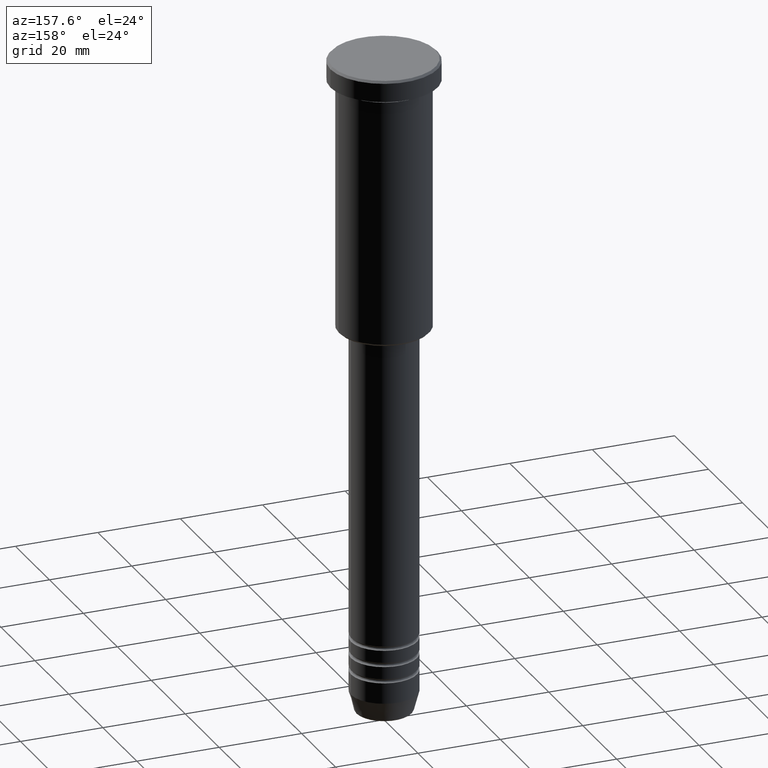
[diagram: clean part render]
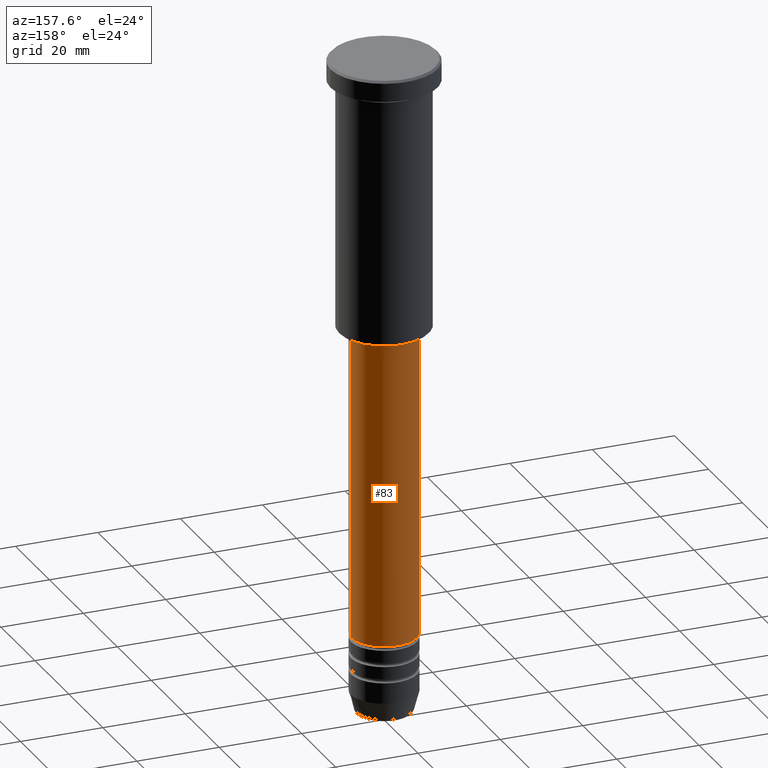
[diagram: same view with one face highlighted and labeled with its STEP entity id]
A machine part, auxiliary view. The second image highlights one B-rep face of the part: STEP entity #83.
In plain terms, the highlighted cylindrical surface (edge-blend (fillet) strip) has radius 8 mm, axis along (-0, -0, 1).
Its self-contained STEP definition (entity closure, byte-faithful):
#26 = ORIENTED_EDGE ( 'NONE', *, *, #479, .F. ) ;
#83 = ADVANCED_FACE ( 'NONE', ( #1103 ), #366, .T. ) ;
#87 = VECTOR ( 'NONE', #1170, 1000.000000000000000 ) ;
#95 = VERTEX_POINT ( 'NONE', #474 ) ;
#111 = DIRECTION ( 'NONE',  ( 1.000000000000000000, 0.000000000000000000, 0.000000000000000000 ) ) ;
#137 = EDGE_LOOP ( 'NONE', ( #443, #315, #248, #26 ) ) ;
#182 = CIRCLE ( 'NONE', #967, 8.000000000000000000 ) ;
#234 = AXIS2_PLACEMENT_3D ( 'NONE', #347, #438, #1171 ) ;
#248 = ORIENTED_EDGE ( 'NONE', *, *, #529, .F. ) ;
#260 = AXIS2_PLACEMENT_3D ( 'NONE', #730, #1097, #111 ) ;
#315 = ORIENTED_EDGE ( 'NONE', *, *, #782, .T. ) ;
#343 = CARTESIAN_POINT ( 'NONE',  ( -8.000000000000000000, 9.797174393178825657E-16, -141.0000000000000000 ) ) ;
#347 = CARTESIAN_POINT ( 'NONE',  ( 0.000000000000000000, 0.000000000000000000, -141.0000000000000000 ) ) ;
#366 = CYLINDRICAL_SURFACE ( 'NONE', #260, 8.000000000000000000 ) ;
#368 = EDGE_CURVE ( 'NONE', #410, #370, #619, .T. ) ;
#370 = VERTEX_POINT ( 'NONE', #343 ) ;
#378 = LINE ( 'NONE', #744, #602 ) ;
#410 = VERTEX_POINT ( 'NONE', #1154 ) ;
#438 = DIRECTION ( 'NONE',  ( -0.000000000000000000, -0.000000000000000000, 1.000000000000000000 ) ) ;
#443 = ORIENTED_EDGE ( 'NONE', *, *, #368, .T. ) ;
#465 = DIRECTION ( 'NONE',  ( -0.000000000000000000, -0.000000000000000000, 1.000000000000000000 ) ) ;
#474 = CARTESIAN_POINT ( 'NONE',  ( -8.000000000000000000, 9.797174393178825657E-16, -67.00000000000002842 ) ) ;
#479 = EDGE_CURVE ( 'NONE', #410, #675, #378, .T. ) ;
#529 = EDGE_CURVE ( 'NONE', #675, #95, #182, .T. ) ;
#556 = CARTESIAN_POINT ( 'NONE',  ( 0.000000000000000000, 0.000000000000000000, -67.00000000000002842 ) ) ;
#602 = VECTOR ( 'NONE', #635, 1000.000000000000000 ) ;
#619 = CIRCLE ( 'NONE', #234, 8.000000000000000000 ) ;
#635 = DIRECTION ( 'NONE',  ( -0.000000000000000000, -0.000000000000000000, 1.000000000000000000 ) ) ;
#673 = CARTESIAN_POINT ( 'NONE',  ( 8.000000000000000000, 0.000000000000000000, -67.00000000000002842 ) ) ;
#675 = VERTEX_POINT ( 'NONE', #673 ) ;
#701 = CARTESIAN_POINT ( 'NONE',  ( -8.000000000000000000, 9.797174393178825657E-16, 0.000000000000000000 ) ) ;
#719 = LINE ( 'NONE', #701, #87 ) ;
#730 = CARTESIAN_POINT ( 'NONE',  ( 0.000000000000000000, 0.000000000000000000, 0.000000000000000000 ) ) ;
#744 = CARTESIAN_POINT ( 'NONE',  ( 8.000000000000000000, 0.000000000000000000, 0.000000000000000000 ) ) ;
#782 = EDGE_CURVE ( 'NONE', #370, #95, #719, .T. ) ;
#967 = AXIS2_PLACEMENT_3D ( 'NONE', #556, #465, #1018 ) ;
#1018 = DIRECTION ( 'NONE',  ( 1.000000000000000000, 0.000000000000000000, 0.000000000000000000 ) ) ;
#1097 = DIRECTION ( 'NONE',  ( -0.000000000000000000, -0.000000000000000000, 1.000000000000000000 ) ) ;
#1103 = FACE_OUTER_BOUND ( 'NONE', #137, .T. ) ;
#1154 = CARTESIAN_POINT ( 'NONE',  ( 8.000000000000000000, 0.000000000000000000, -141.0000000000000000 ) ) ;
#1170 = DIRECTION ( 'NONE',  ( -0.000000000000000000, -0.000000000000000000, 1.000000000000000000 ) ) ;
#1171 = DIRECTION ( 'NONE',  ( 1.000000000000000000, 0.000000000000000000, 0.000000000000000000 ) ) ;